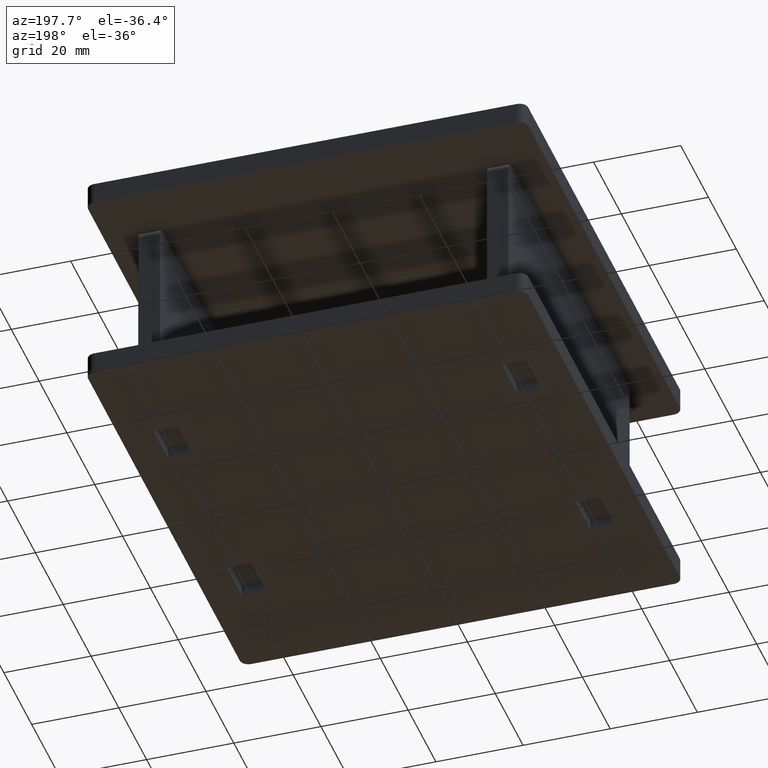
[diagram: clean part render]
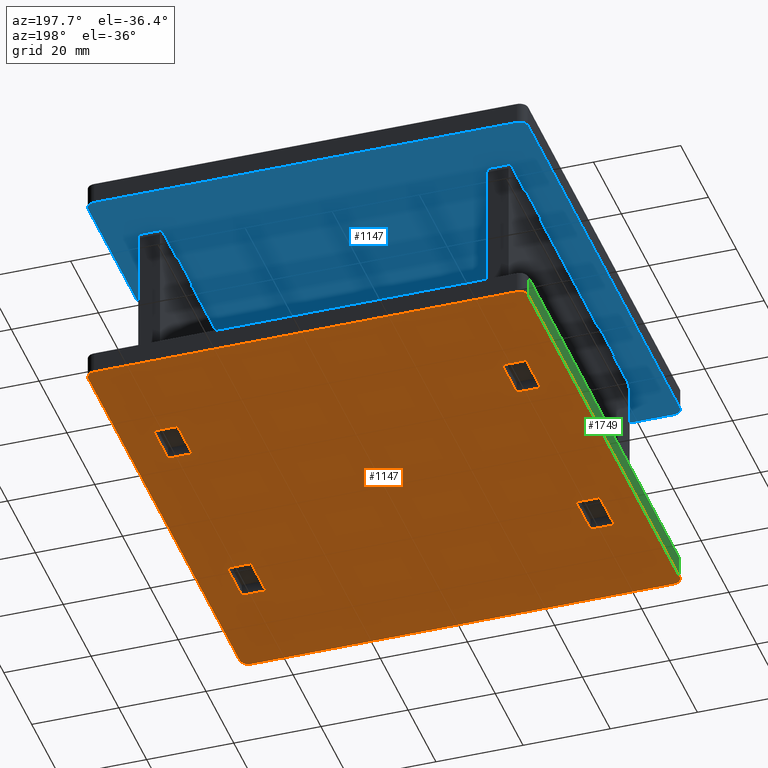
[diagram: same view with three faces highlighted in distinct colors, each labeled with its STEP entity id]
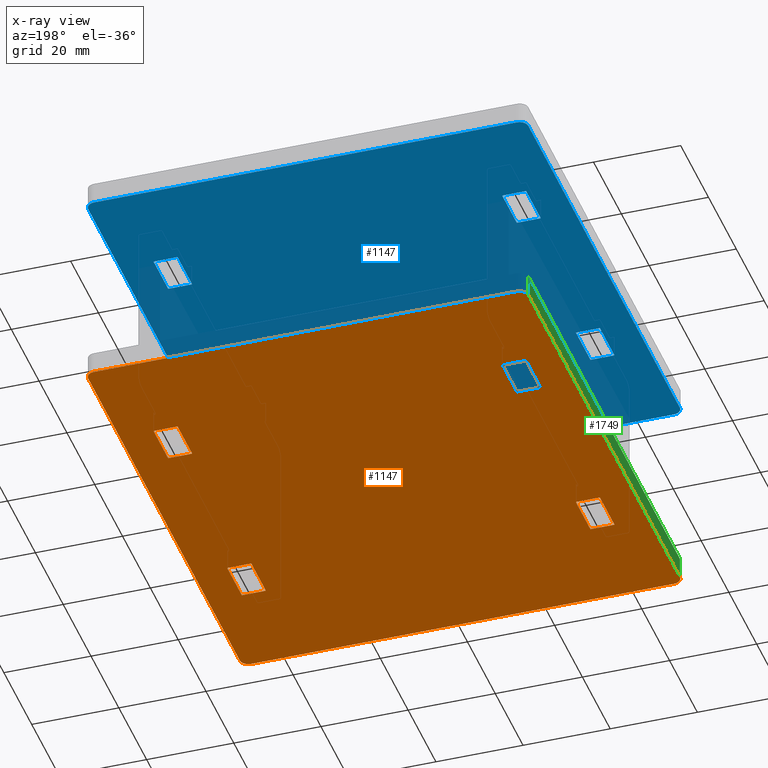
[diagram: x-ray of the same camera — body ghosted, the three highlighted faces saturated]
A machine part, auxiliary view with three faces highlighted in distinct colors.
The next image is the same camera in x-ray (body ghosted, the three faces saturated) — at least one of them is partly hidden behind the body in this view.
Their STEP definitions:

[orange] entity #1147 — the highlighted planar face has unit normal (0, 0, -1).
#9 = LINE ( 'NONE', #1069, #2030 ) ;
#27 = LINE ( 'NONE', #1655, #60 ) ;
#37 = LINE ( 'NONE', #1435, #1886 ) ;
#41 = VERTEX_POINT ( 'NONE', #973 ) ;
#49 = DIRECTION ( 'NONE',  ( 0.000000000000000000, 0.000000000000000000, -1.000000000000000000 ) ) ;
#58 = VERTEX_POINT ( 'NONE', #1675 ) ;
#60 = VECTOR ( 'NONE', #1635, 1000.000000000000000 ) ;
#72 = EDGE_CURVE ( 'NONE', #1181, #58, #117, .T. ) ;
#87 = ORIENTED_EDGE ( 'NONE', *, *, #2088, .T. ) ;
#101 = DIRECTION ( 'NONE',  ( 0.000000000000000000, 0.000000000000000000, -1.000000000000000000 ) ) ;
#104 = DIRECTION ( 'NONE',  ( 0.000000000000000000, -1.000000000000000000, 0.000000000000000000 ) ) ;
#111 = ORIENTED_EDGE ( 'NONE', *, *, #2292, .T. ) ;
#117 = LINE ( 'NONE', #1548, #2099 ) ;
#120 = VERTEX_POINT ( 'NONE', #712 ) ;
#121 = CARTESIAN_POINT ( 'NONE',  ( -42.74999999999999289, -21.24999999999999289, -5.000000000000000000 ) ) ;
#130 = CARTESIAN_POINT ( 'NONE',  ( -37.24999999999999289, 31.74999999999999289, -5.000000000000000000 ) ) ;
#134 = CARTESIAN_POINT ( 'NONE',  ( 37.25000000000000711, -21.24999999999999289, -5.000000000000000000 ) ) ;
#139 = CARTESIAN_POINT ( 'NONE',  ( -37.25000000000000711, -21.24999999999999289, -5.000000000000000000 ) ) ;
#154 = ORIENTED_EDGE ( 'NONE', *, *, #793, .F. ) ;
#206 = FACE_BOUND ( 'NONE', #2010, .T. ) ;
#214 = CARTESIAN_POINT ( 'NONE',  ( -42.74999999999999289, 31.74999999999999289, -5.000000000000000000 ) ) ;
#217 = FACE_BOUND ( 'NONE', #2075, .T. ) ;
#221 = CARTESIAN_POINT ( 'NONE',  ( -42.74999999999999289, 21.24999999999999289, -5.000000000000000000 ) ) ;
#223 = EDGE_CURVE ( 'NONE', #58, #2216, #1605, .T. ) ;
#236 = EDGE_CURVE ( 'NONE', #523, #1181, #519, .T. ) ;
#260 = CARTESIAN_POINT ( 'NONE',  ( 50.50000000000001421, -56.50000000000000000, -5.000000000000000000 ) ) ;
#305 = LINE ( 'NONE', #1394, #513 ) ;
#314 = DIRECTION ( 'NONE',  ( 0.000000000000000000, 0.000000000000000000, -1.000000000000000000 ) ) ;
#318 = CARTESIAN_POINT ( 'NONE',  ( 37.25000000000000711, -21.24999999999999289, -5.000000000000000000 ) ) ;
#328 = AXIS2_PLACEMENT_3D ( 'NONE', #571, #49, #2200 ) ;
#339 = VERTEX_POINT ( 'NONE', #214 ) ;
#371 = DIRECTION ( 'NONE',  ( 0.000000000000000000, 0.000000000000000000, -1.000000000000000000 ) ) ;
#386 = VERTEX_POINT ( 'NONE', #1278 ) ;
#393 = VERTEX_POINT ( 'NONE', #2169 ) ;
#394 = AXIS2_PLACEMENT_3D ( 'NONE', #1834, #371, #778 ) ;
#399 = FACE_BOUND ( 'NONE', #1411, .T. ) ;
#402 = VECTOR ( 'NONE', #2222, 1000.000000000000000 ) ;
#411 = PLANE ( 'NONE',  #394 ) ;
#434 = VECTOR ( 'NONE', #1898, 1000.000000000000000 ) ;
#440 = VECTOR ( 'NONE', #1121, 1000.000000000000000 ) ;
#452 = ORIENTED_EDGE ( 'NONE', *, *, #958, .T. ) ;
#478 = VERTEX_POINT ( 'NONE', #786 ) ;
#513 = VECTOR ( 'NONE', #2068, 1000.000000000000000 ) ;
#519 = LINE ( 'NONE', #1049, #1146 ) ;
#523 = VERTEX_POINT ( 'NONE', #1168 ) ;
#530 = DIRECTION ( 'NONE',  ( -1.000000000000000000, -0.000000000000000000, -0.000000000000000000 ) ) ;
#548 = CARTESIAN_POINT ( 'NONE',  ( -48.49999999999998579, -56.50000000000000000, -5.000000000000000000 ) ) ;
#550 = VECTOR ( 'NONE', #1845, 1000.000000000000000 ) ;
#561 = DIRECTION ( 'NONE',  ( -1.000000000000000000, 0.000000000000000000, 0.000000000000000000 ) ) ;
#571 = CARTESIAN_POINT ( 'NONE',  ( -48.49999999999998579, -54.50000000000000000, -5.000000000000000000 ) ) ;
#595 = CARTESIAN_POINT ( 'NONE',  ( 42.74999999999999289, 21.24999999999999289, -5.000000000000000000 ) ) ;
#601 = EDGE_CURVE ( 'NONE', #41, #1135, #2102, .T. ) ;
#602 = CARTESIAN_POINT ( 'NONE',  ( 48.50000000000001421, 54.50000000000000000, -5.000000000000000000 ) ) ;
#607 = CARTESIAN_POINT ( 'NONE',  ( 48.50000000000001421, -54.50000000000000000, -5.000000000000000000 ) ) ;
#615 = VERTEX_POINT ( 'NONE', #1016 ) ;
#650 = EDGE_CURVE ( 'NONE', #339, #964, #305, .T. ) ;
#664 = EDGE_CURVE ( 'NONE', #1584, #615, #1058, .T. ) ;
#679 = CARTESIAN_POINT ( 'NONE',  ( -48.49999999999998579, 54.50000000000000000, -5.000000000000000000 ) ) ;
#693 = ORIENTED_EDGE ( 'NONE', *, *, #601, .T. ) ;
#712 = CARTESIAN_POINT ( 'NONE',  ( -50.49999999999998579, -54.50000000000000000, -5.000000000000000000 ) ) ;
#724 = ORIENTED_EDGE ( 'NONE', *, *, #1468, .F. ) ;
#743 = LINE ( 'NONE', #1977, #2175 ) ;
#744 = EDGE_CURVE ( 'NONE', #478, #339, #9, .T. ) ;
#770 = AXIS2_PLACEMENT_3D ( 'NONE', #607, #101, #1176 ) ;
#778 = DIRECTION ( 'NONE',  ( -1.000000000000000000, 0.000000000000000000, -0.000000000000000000 ) ) ;
#786 = CARTESIAN_POINT ( 'NONE',  ( -37.24999999999999289, 31.74999999999999289, -5.000000000000000000 ) ) ;
#793 = EDGE_CURVE ( 'NONE', #41, #120, #743, .T. ) ;
#801 = VERTEX_POINT ( 'NONE', #548 ) ;
#805 = EDGE_CURVE ( 'NONE', #1818, #1401, #37, .T. ) ;
#806 = LINE ( 'NONE', #130, #402 ) ;
#822 = CARTESIAN_POINT ( 'NONE',  ( 50.50000000000001421, 54.50000000000000000, -5.000000000000000000 ) ) ;
#830 = ORIENTED_EDGE ( 'NONE', *, *, #72, .T. ) ;
#843 = ORIENTED_EDGE ( 'NONE', *, *, #1293, .F. ) ;
#845 = CARTESIAN_POINT ( 'NONE',  ( 42.74999999999999289, -31.74999999999999289, -5.000000000000000000 ) ) ;
#872 = CARTESIAN_POINT ( 'NONE',  ( 42.74999999999999289, 31.74999999999999289, -5.000000000000000000 ) ) ;
#881 = VERTEX_POINT ( 'NONE', #2184 ) ;
#900 = VERTEX_POINT ( 'NONE', #822 ) ;
#916 = CIRCLE ( 'NONE', #770, 2.000000000000001776 ) ;
#933 = ORIENTED_EDGE ( 'NONE', *, *, #2039, .F. ) ;
#953 = EDGE_CURVE ( 'NONE', #1808, #1926, #2198, .T. ) ;
#958 = EDGE_CURVE ( 'NONE', #1847, #386, #916, .T. ) ;
#964 = VERTEX_POINT ( 'NONE', #2017 ) ;
#973 = CARTESIAN_POINT ( 'NONE',  ( -50.49999999999998579, 54.50000000000000000, -5.000000000000000000 ) ) ;
#992 = LINE ( 'NONE', #1545, #1921 ) ;
#1013 = EDGE_LOOP ( 'NONE', ( #933, #1425, #154, #693, #1162, #1055, #843, #452 ) ) ;
#1016 = CARTESIAN_POINT ( 'NONE',  ( 37.25000000000000711, 21.24999999999999289, -5.000000000000000000 ) ) ;
#1049 = CARTESIAN_POINT ( 'NONE',  ( -42.74999999999999289, -21.24999999999999289, -5.000000000000000000 ) ) ;
#1055 = ORIENTED_EDGE ( 'NONE', *, *, #1311, .T. ) ;
#1058 = LINE ( 'NONE', #1555, #434 ) ;
#1069 = CARTESIAN_POINT ( 'NONE',  ( -42.74999999999999289, 31.74999999999999289, -5.000000000000000000 ) ) ;
#1077 = CARTESIAN_POINT ( 'NONE',  ( -48.49999999999998579, 56.50000000000000000, -5.000000000000000000 ) ) ;
#1109 = VECTOR ( 'NONE', #530, 1000.000000000000000 ) ;
#1117 = FACE_OUTER_BOUND ( 'NONE', #1013, .T. ) ;
#1121 = DIRECTION ( 'NONE',  ( 1.000000000000000000, 0.000000000000000000, 0.000000000000000000 ) ) ;
#1135 = VERTEX_POINT ( 'NONE', #1077 ) ;
#1146 = VECTOR ( 'NONE', #1559, 1000.000000000000000 ) ;
#1147 = ADVANCED_FACE ( 'NONE', ( #206, #399, #1117, #1825, #217 ), #411, .T. ) ;
#1162 = ORIENTED_EDGE ( 'NONE', *, *, #1516, .F. ) ;
#1168 = CARTESIAN_POINT ( 'NONE',  ( -42.74999999999999289, -21.24999999999999289, -5.000000000000000000 ) ) ;
#1176 = DIRECTION ( 'NONE',  ( -1.000000000000000000, 0.000000000000000000, 0.000000000000000000 ) ) ;
#1181 = VERTEX_POINT ( 'NONE', #1726 ) ;
#1193 = VECTOR ( 'NONE', #1850, 1000.000000000000000 ) ;
#1195 = AXIS2_PLACEMENT_3D ( 'NONE', #602, #1333, #2205 ) ;
#1267 = VECTOR ( 'NONE', #1976, 1000.000000000000000 ) ;
#1278 = CARTESIAN_POINT ( 'NONE',  ( 48.50000000000001421, -56.50000000000000000, -5.000000000000000000 ) ) ;
#1285 = LINE ( 'NONE', #221, #1267 ) ;
#1293 = EDGE_CURVE ( 'NONE', #1847, #900, #1503, .T. ) ;
#1297 = VECTOR ( 'NONE', #1428, 1000.000000000000000 ) ;
#1298 = CARTESIAN_POINT ( 'NONE',  ( -50.49999999999998579, -56.50000000000000000, -5.000000000000000000 ) ) ;
#1305 = ORIENTED_EDGE ( 'NONE', *, *, #223, .T. ) ;
#1311 = EDGE_CURVE ( 'NONE', #881, #900, #1415, .T. ) ;
#1329 = ORIENTED_EDGE ( 'NONE', *, *, #805, .F. ) ;
#1333 = DIRECTION ( 'NONE',  ( 0.000000000000000000, 0.000000000000000000, -1.000000000000000000 ) ) ;
#1346 = VECTOR ( 'NONE', #1619, 1000.000000000000000 ) ;
#1375 = DIRECTION ( 'NONE',  ( 1.000000000000000000, 0.000000000000000000, 0.000000000000000000 ) ) ;
#1378 = CARTESIAN_POINT ( 'NONE',  ( -50.49999999999998579, 56.50000000000000000, -5.000000000000000000 ) ) ;
#1389 = LINE ( 'NONE', #1378, #1109 ) ;
#1394 = CARTESIAN_POINT ( 'NONE',  ( -42.74999999999999289, 31.74999999999999289, -5.000000000000000000 ) ) ;
#1401 = VERTEX_POINT ( 'NONE', #1759 ) ;
#1409 = AXIS2_PLACEMENT_3D ( 'NONE', #679, #314, #2282 ) ;
#1411 = EDGE_LOOP ( 'NONE', ( #2189, #724, #1490, #1329 ) ) ;
#1415 = CIRCLE ( 'NONE', #1195, 2.000000000000001776 ) ;
#1425 = ORIENTED_EDGE ( 'NONE', *, *, #1643, .T. ) ;
#1427 = DIRECTION ( 'NONE',  ( -0.000000000000000000, -1.000000000000000000, -0.000000000000000000 ) ) ;
#1428 = DIRECTION ( 'NONE',  ( -6.608470384673549052E-16, 1.000000000000000000, 0.000000000000000000 ) ) ;
#1432 = EDGE_CURVE ( 'NONE', #393, #1818, #1931, .T. ) ;
#1433 = ORIENTED_EDGE ( 'NONE', *, *, #744, .T. ) ;
#1434 = CARTESIAN_POINT ( 'NONE',  ( 50.50000000000001421, -54.50000000000000000, -5.000000000000000000 ) ) ;
#1435 = CARTESIAN_POINT ( 'NONE',  ( 42.74999999999999289, -21.24999999999999289, -5.000000000000000000 ) ) ;
#1446 = CARTESIAN_POINT ( 'NONE',  ( 37.24999999999999289, 31.74999999999999289, -5.000000000000000000 ) ) ;
#1447 = DIRECTION ( 'NONE',  ( 1.000000000000000000, -0.000000000000000000, -0.000000000000000000 ) ) ;
#1468 = EDGE_CURVE ( 'NONE', #1923, #393, #1766, .T. ) ;
#1490 = ORIENTED_EDGE ( 'NONE', *, *, #1547, .F. ) ;
#1497 = CARTESIAN_POINT ( 'NONE',  ( 42.74999999999999289, 31.74999999999999289, -5.000000000000000000 ) ) ;
#1503 = LINE ( 'NONE', #260, #550 ) ;
#1505 = EDGE_LOOP ( 'NONE', ( #830, #1305, #1813, #2234 ) ) ;
#1507 = LINE ( 'NONE', #1298, #440 ) ;
#1516 = EDGE_CURVE ( 'NONE', #881, #1135, #1389, .T. ) ;
#1545 = CARTESIAN_POINT ( 'NONE',  ( 42.74999999999999289, 31.74999999999999289, -5.000000000000000000 ) ) ;
#1547 = EDGE_CURVE ( 'NONE', #1401, #1923, #27, .T. ) ;
#1548 = CARTESIAN_POINT ( 'NONE',  ( -42.74999999999999289, -31.74999999999999289, -5.000000000000000000 ) ) ;
#1555 = CARTESIAN_POINT ( 'NONE',  ( 42.74999999999999289, 21.24999999999999289, -5.000000000000000000 ) ) ;
#1559 = DIRECTION ( 'NONE',  ( 0.000000000000000000, -1.000000000000000000, 0.000000000000000000 ) ) ;
#1584 = VERTEX_POINT ( 'NONE', #595 ) ;
#1603 = LINE ( 'NONE', #1446, #1346 ) ;
#1605 = LINE ( 'NONE', #139, #1297 ) ;
#1619 = DIRECTION ( 'NONE',  ( -1.321694076934709810E-15, 1.000000000000000000, -0.000000000000000000 ) ) ;
#1635 = DIRECTION ( 'NONE',  ( 0.000000000000000000, -1.000000000000000000, 0.000000000000000000 ) ) ;
#1643 = EDGE_CURVE ( 'NONE', #801, #120, #2033, .T. ) ;
#1655 = CARTESIAN_POINT ( 'NONE',  ( 42.74999999999999289, -21.24999999999999289, -5.000000000000000000 ) ) ;
#1675 = CARTESIAN_POINT ( 'NONE',  ( -37.25000000000000000, -31.74999999999999289, -5.000000000000000000 ) ) ;
#1692 = DIRECTION ( 'NONE',  ( -1.000000000000000000, 0.000000000000000000, 0.000000000000000000 ) ) ;
#1702 = EDGE_CURVE ( 'NONE', #1926, #1584, #992, .T. ) ;
#1704 = CARTESIAN_POINT ( 'NONE',  ( -37.25000000000000711, 21.24999999999999289, -5.000000000000000000 ) ) ;
#1715 = VECTOR ( 'NONE', #1692, 1000.000000000000000 ) ;
#1726 = CARTESIAN_POINT ( 'NONE',  ( -42.74999999999999289, -31.74999999999999289, -5.000000000000000000 ) ) ;
#1746 = DIRECTION ( 'NONE',  ( -1.000000000000000000, 0.000000000000000000, 0.000000000000000000 ) ) ;
#1759 = CARTESIAN_POINT ( 'NONE',  ( 42.74999999999999289, -21.24999999999999289, -5.000000000000000000 ) ) ;
#1766 = LINE ( 'NONE', #845, #2180 ) ;
#1787 = CARTESIAN_POINT ( 'NONE',  ( 42.74999999999999289, -31.74999999999999289, -5.000000000000000000 ) ) ;
#1808 = VERTEX_POINT ( 'NONE', #2259 ) ;
#1813 = ORIENTED_EDGE ( 'NONE', *, *, #2283, .T. ) ;
#1818 = VERTEX_POINT ( 'NONE', #134 ) ;
#1825 = FACE_BOUND ( 'NONE', #1505, .T. ) ;
#1834 = CARTESIAN_POINT ( 'NONE',  ( 0.000000000000000000, 0.000000000000000000, -5.000000000000000000 ) ) ;
#1845 = DIRECTION ( 'NONE',  ( 0.000000000000000000, 1.000000000000000000, 0.000000000000000000 ) ) ;
#1847 = VERTEX_POINT ( 'NONE', #1434 ) ;
#1850 = DIRECTION ( 'NONE',  ( 1.000000000000000000, -0.000000000000000000, -0.000000000000000000 ) ) ;
#1856 = ORIENTED_EDGE ( 'NONE', *, *, #953, .F. ) ;
#1886 = VECTOR ( 'NONE', #1447, 1000.000000000000000 ) ;
#1898 = DIRECTION ( 'NONE',  ( -1.000000000000000000, 0.000000000000000000, 0.000000000000000000 ) ) ;
#1904 = EDGE_CURVE ( 'NONE', #615, #1808, #1603, .T. ) ;
#1921 = VECTOR ( 'NONE', #104, 1000.000000000000000 ) ;
#1923 = VERTEX_POINT ( 'NONE', #1787 ) ;
#1926 = VERTEX_POINT ( 'NONE', #872 ) ;
#1931 = LINE ( 'NONE', #318, #2069 ) ;
#1976 = DIRECTION ( 'NONE',  ( 1.000000000000000000, 0.000000000000000000, 0.000000000000000000 ) ) ;
#1977 = CARTESIAN_POINT ( 'NONE',  ( -50.49999999999998579, -56.50000000000000000, -5.000000000000000000 ) ) ;
#2010 = EDGE_LOOP ( 'NONE', ( #2112, #2202, #2165, #1856 ) ) ;
#2017 = CARTESIAN_POINT ( 'NONE',  ( -42.74999999999999289, 21.24999999999999289, -5.000000000000000000 ) ) ;
#2030 = VECTOR ( 'NONE', #561, 1000.000000000000000 ) ;
#2033 = CIRCLE ( 'NONE', #328, 2.000000000000001776 ) ;
#2039 = EDGE_CURVE ( 'NONE', #801, #386, #1507, .T. ) ;
#2044 = CARTESIAN_POINT ( 'NONE',  ( -37.25000000000000711, -21.24999999999999289, -5.000000000000000000 ) ) ;
#2068 = DIRECTION ( 'NONE',  ( 0.000000000000000000, -1.000000000000000000, 0.000000000000000000 ) ) ;
#2069 = VECTOR ( 'NONE', #2285, 1000.000000000000000 ) ;
#2075 = EDGE_LOOP ( 'NONE', ( #87, #111, #1433, #2187 ) ) ;
#2088 = EDGE_CURVE ( 'NONE', #964, #2268, #1285, .T. ) ;
#2099 = VECTOR ( 'NONE', #1375, 1000.000000000000000 ) ;
#2102 = CIRCLE ( 'NONE', #1409, 2.000000000000001776 ) ;
#2112 = ORIENTED_EDGE ( 'NONE', *, *, #1904, .F. ) ;
#2165 = ORIENTED_EDGE ( 'NONE', *, *, #1702, .F. ) ;
#2169 = CARTESIAN_POINT ( 'NONE',  ( 37.25000000000000000, -31.74999999999999289, -5.000000000000000000 ) ) ;
#2175 = VECTOR ( 'NONE', #1427, 1000.000000000000000 ) ;
#2180 = VECTOR ( 'NONE', #1746, 1000.000000000000000 ) ;
#2184 = CARTESIAN_POINT ( 'NONE',  ( 48.50000000000001421, 56.50000000000000000, -5.000000000000000000 ) ) ;
#2187 = ORIENTED_EDGE ( 'NONE', *, *, #650, .T. ) ;
#2189 = ORIENTED_EDGE ( 'NONE', *, *, #1432, .F. ) ;
#2198 = LINE ( 'NONE', #1497, #1193 ) ;
#2200 = DIRECTION ( 'NONE',  ( -1.000000000000000000, 0.000000000000000000, 0.000000000000000000 ) ) ;
#2202 = ORIENTED_EDGE ( 'NONE', *, *, #664, .F. ) ;
#2205 = DIRECTION ( 'NONE',  ( -1.000000000000000000, 0.000000000000000000, 0.000000000000000000 ) ) ;
#2216 = VERTEX_POINT ( 'NONE', #2044 ) ;
#2222 = DIRECTION ( 'NONE',  ( 1.321694076934709810E-15, 1.000000000000000000, 0.000000000000000000 ) ) ;
#2234 = ORIENTED_EDGE ( 'NONE', *, *, #236, .T. ) ;
#2238 = LINE ( 'NONE', #121, #1715 ) ;
#2259 = CARTESIAN_POINT ( 'NONE',  ( 37.24999999999999289, 31.74999999999999289, -5.000000000000000000 ) ) ;
#2268 = VERTEX_POINT ( 'NONE', #1704 ) ;
#2282 = DIRECTION ( 'NONE',  ( -1.000000000000000000, 0.000000000000000000, 0.000000000000000000 ) ) ;
#2283 = EDGE_CURVE ( 'NONE', #2216, #523, #2238, .T. ) ;
#2285 = DIRECTION ( 'NONE',  ( 6.608470384673549052E-16, 1.000000000000000000, -0.000000000000000000 ) ) ;
#2292 = EDGE_CURVE ( 'NONE', #2268, #478, #806, .T. ) ;

[blue] entity #1147 — the highlighted planar face has unit normal (0, 0, -1).
#9 = LINE ( 'NONE', #1069, #2030 ) ;
#27 = LINE ( 'NONE', #1655, #60 ) ;
#37 = LINE ( 'NONE', #1435, #1886 ) ;
#41 = VERTEX_POINT ( 'NONE', #973 ) ;
#49 = DIRECTION ( 'NONE',  ( 0.000000000000000000, 0.000000000000000000, -1.000000000000000000 ) ) ;
#58 = VERTEX_POINT ( 'NONE', #1675 ) ;
#60 = VECTOR ( 'NONE', #1635, 1000.000000000000000 ) ;
#72 = EDGE_CURVE ( 'NONE', #1181, #58, #117, .T. ) ;
#87 = ORIENTED_EDGE ( 'NONE', *, *, #2088, .T. ) ;
#101 = DIRECTION ( 'NONE',  ( 0.000000000000000000, 0.000000000000000000, -1.000000000000000000 ) ) ;
#104 = DIRECTION ( 'NONE',  ( 0.000000000000000000, -1.000000000000000000, 0.000000000000000000 ) ) ;
#111 = ORIENTED_EDGE ( 'NONE', *, *, #2292, .T. ) ;
#117 = LINE ( 'NONE', #1548, #2099 ) ;
#120 = VERTEX_POINT ( 'NONE', #712 ) ;
#121 = CARTESIAN_POINT ( 'NONE',  ( -42.74999999999999289, -21.24999999999999289, -5.000000000000000000 ) ) ;
#130 = CARTESIAN_POINT ( 'NONE',  ( -37.24999999999999289, 31.74999999999999289, -5.000000000000000000 ) ) ;
#134 = CARTESIAN_POINT ( 'NONE',  ( 37.25000000000000711, -21.24999999999999289, -5.000000000000000000 ) ) ;
#139 = CARTESIAN_POINT ( 'NONE',  ( -37.25000000000000711, -21.24999999999999289, -5.000000000000000000 ) ) ;
#154 = ORIENTED_EDGE ( 'NONE', *, *, #793, .F. ) ;
#206 = FACE_BOUND ( 'NONE', #2010, .T. ) ;
#214 = CARTESIAN_POINT ( 'NONE',  ( -42.74999999999999289, 31.74999999999999289, -5.000000000000000000 ) ) ;
#217 = FACE_BOUND ( 'NONE', #2075, .T. ) ;
#221 = CARTESIAN_POINT ( 'NONE',  ( -42.74999999999999289, 21.24999999999999289, -5.000000000000000000 ) ) ;
#223 = EDGE_CURVE ( 'NONE', #58, #2216, #1605, .T. ) ;
#236 = EDGE_CURVE ( 'NONE', #523, #1181, #519, .T. ) ;
#260 = CARTESIAN_POINT ( 'NONE',  ( 50.50000000000001421, -56.50000000000000000, -5.000000000000000000 ) ) ;
#305 = LINE ( 'NONE', #1394, #513 ) ;
#314 = DIRECTION ( 'NONE',  ( 0.000000000000000000, 0.000000000000000000, -1.000000000000000000 ) ) ;
#318 = CARTESIAN_POINT ( 'NONE',  ( 37.25000000000000711, -21.24999999999999289, -5.000000000000000000 ) ) ;
#328 = AXIS2_PLACEMENT_3D ( 'NONE', #571, #49, #2200 ) ;
#339 = VERTEX_POINT ( 'NONE', #214 ) ;
#371 = DIRECTION ( 'NONE',  ( 0.000000000000000000, 0.000000000000000000, -1.000000000000000000 ) ) ;
#386 = VERTEX_POINT ( 'NONE', #1278 ) ;
#393 = VERTEX_POINT ( 'NONE', #2169 ) ;
#394 = AXIS2_PLACEMENT_3D ( 'NONE', #1834, #371, #778 ) ;
#399 = FACE_BOUND ( 'NONE', #1411, .T. ) ;
#402 = VECTOR ( 'NONE', #2222, 1000.000000000000000 ) ;
#411 = PLANE ( 'NONE',  #394 ) ;
#434 = VECTOR ( 'NONE', #1898, 1000.000000000000000 ) ;
#440 = VECTOR ( 'NONE', #1121, 1000.000000000000000 ) ;
#452 = ORIENTED_EDGE ( 'NONE', *, *, #958, .T. ) ;
#478 = VERTEX_POINT ( 'NONE', #786 ) ;
#513 = VECTOR ( 'NONE', #2068, 1000.000000000000000 ) ;
#519 = LINE ( 'NONE', #1049, #1146 ) ;
#523 = VERTEX_POINT ( 'NONE', #1168 ) ;
#530 = DIRECTION ( 'NONE',  ( -1.000000000000000000, -0.000000000000000000, -0.000000000000000000 ) ) ;
#548 = CARTESIAN_POINT ( 'NONE',  ( -48.49999999999998579, -56.50000000000000000, -5.000000000000000000 ) ) ;
#550 = VECTOR ( 'NONE', #1845, 1000.000000000000000 ) ;
#561 = DIRECTION ( 'NONE',  ( -1.000000000000000000, 0.000000000000000000, 0.000000000000000000 ) ) ;
#571 = CARTESIAN_POINT ( 'NONE',  ( -48.49999999999998579, -54.50000000000000000, -5.000000000000000000 ) ) ;
#595 = CARTESIAN_POINT ( 'NONE',  ( 42.74999999999999289, 21.24999999999999289, -5.000000000000000000 ) ) ;
#601 = EDGE_CURVE ( 'NONE', #41, #1135, #2102, .T. ) ;
#602 = CARTESIAN_POINT ( 'NONE',  ( 48.50000000000001421, 54.50000000000000000, -5.000000000000000000 ) ) ;
#607 = CARTESIAN_POINT ( 'NONE',  ( 48.50000000000001421, -54.50000000000000000, -5.000000000000000000 ) ) ;
#615 = VERTEX_POINT ( 'NONE', #1016 ) ;
#650 = EDGE_CURVE ( 'NONE', #339, #964, #305, .T. ) ;
#664 = EDGE_CURVE ( 'NONE', #1584, #615, #1058, .T. ) ;
#679 = CARTESIAN_POINT ( 'NONE',  ( -48.49999999999998579, 54.50000000000000000, -5.000000000000000000 ) ) ;
#693 = ORIENTED_EDGE ( 'NONE', *, *, #601, .T. ) ;
#712 = CARTESIAN_POINT ( 'NONE',  ( -50.49999999999998579, -54.50000000000000000, -5.000000000000000000 ) ) ;
#724 = ORIENTED_EDGE ( 'NONE', *, *, #1468, .F. ) ;
#743 = LINE ( 'NONE', #1977, #2175 ) ;
#744 = EDGE_CURVE ( 'NONE', #478, #339, #9, .T. ) ;
#770 = AXIS2_PLACEMENT_3D ( 'NONE', #607, #101, #1176 ) ;
#778 = DIRECTION ( 'NONE',  ( -1.000000000000000000, 0.000000000000000000, -0.000000000000000000 ) ) ;
#786 = CARTESIAN_POINT ( 'NONE',  ( -37.24999999999999289, 31.74999999999999289, -5.000000000000000000 ) ) ;
#793 = EDGE_CURVE ( 'NONE', #41, #120, #743, .T. ) ;
#801 = VERTEX_POINT ( 'NONE', #548 ) ;
#805 = EDGE_CURVE ( 'NONE', #1818, #1401, #37, .T. ) ;
#806 = LINE ( 'NONE', #130, #402 ) ;
#822 = CARTESIAN_POINT ( 'NONE',  ( 50.50000000000001421, 54.50000000000000000, -5.000000000000000000 ) ) ;
#830 = ORIENTED_EDGE ( 'NONE', *, *, #72, .T. ) ;
#843 = ORIENTED_EDGE ( 'NONE', *, *, #1293, .F. ) ;
#845 = CARTESIAN_POINT ( 'NONE',  ( 42.74999999999999289, -31.74999999999999289, -5.000000000000000000 ) ) ;
#872 = CARTESIAN_POINT ( 'NONE',  ( 42.74999999999999289, 31.74999999999999289, -5.000000000000000000 ) ) ;
#881 = VERTEX_POINT ( 'NONE', #2184 ) ;
#900 = VERTEX_POINT ( 'NONE', #822 ) ;
#916 = CIRCLE ( 'NONE', #770, 2.000000000000001776 ) ;
#933 = ORIENTED_EDGE ( 'NONE', *, *, #2039, .F. ) ;
#953 = EDGE_CURVE ( 'NONE', #1808, #1926, #2198, .T. ) ;
#958 = EDGE_CURVE ( 'NONE', #1847, #386, #916, .T. ) ;
#964 = VERTEX_POINT ( 'NONE', #2017 ) ;
#973 = CARTESIAN_POINT ( 'NONE',  ( -50.49999999999998579, 54.50000000000000000, -5.000000000000000000 ) ) ;
#992 = LINE ( 'NONE', #1545, #1921 ) ;
#1013 = EDGE_LOOP ( 'NONE', ( #933, #1425, #154, #693, #1162, #1055, #843, #452 ) ) ;
#1016 = CARTESIAN_POINT ( 'NONE',  ( 37.25000000000000711, 21.24999999999999289, -5.000000000000000000 ) ) ;
#1049 = CARTESIAN_POINT ( 'NONE',  ( -42.74999999999999289, -21.24999999999999289, -5.000000000000000000 ) ) ;
#1055 = ORIENTED_EDGE ( 'NONE', *, *, #1311, .T. ) ;
#1058 = LINE ( 'NONE', #1555, #434 ) ;
#1069 = CARTESIAN_POINT ( 'NONE',  ( -42.74999999999999289, 31.74999999999999289, -5.000000000000000000 ) ) ;
#1077 = CARTESIAN_POINT ( 'NONE',  ( -48.49999999999998579, 56.50000000000000000, -5.000000000000000000 ) ) ;
#1109 = VECTOR ( 'NONE', #530, 1000.000000000000000 ) ;
#1117 = FACE_OUTER_BOUND ( 'NONE', #1013, .T. ) ;
#1121 = DIRECTION ( 'NONE',  ( 1.000000000000000000, 0.000000000000000000, 0.000000000000000000 ) ) ;
#1135 = VERTEX_POINT ( 'NONE', #1077 ) ;
#1146 = VECTOR ( 'NONE', #1559, 1000.000000000000000 ) ;
#1147 = ADVANCED_FACE ( 'NONE', ( #206, #399, #1117, #1825, #217 ), #411, .T. ) ;
#1162 = ORIENTED_EDGE ( 'NONE', *, *, #1516, .F. ) ;
#1168 = CARTESIAN_POINT ( 'NONE',  ( -42.74999999999999289, -21.24999999999999289, -5.000000000000000000 ) ) ;
#1176 = DIRECTION ( 'NONE',  ( -1.000000000000000000, 0.000000000000000000, 0.000000000000000000 ) ) ;
#1181 = VERTEX_POINT ( 'NONE', #1726 ) ;
#1193 = VECTOR ( 'NONE', #1850, 1000.000000000000000 ) ;
#1195 = AXIS2_PLACEMENT_3D ( 'NONE', #602, #1333, #2205 ) ;
#1267 = VECTOR ( 'NONE', #1976, 1000.000000000000000 ) ;
#1278 = CARTESIAN_POINT ( 'NONE',  ( 48.50000000000001421, -56.50000000000000000, -5.000000000000000000 ) ) ;
#1285 = LINE ( 'NONE', #221, #1267 ) ;
#1293 = EDGE_CURVE ( 'NONE', #1847, #900, #1503, .T. ) ;
#1297 = VECTOR ( 'NONE', #1428, 1000.000000000000000 ) ;
#1298 = CARTESIAN_POINT ( 'NONE',  ( -50.49999999999998579, -56.50000000000000000, -5.000000000000000000 ) ) ;
#1305 = ORIENTED_EDGE ( 'NONE', *, *, #223, .T. ) ;
#1311 = EDGE_CURVE ( 'NONE', #881, #900, #1415, .T. ) ;
#1329 = ORIENTED_EDGE ( 'NONE', *, *, #805, .F. ) ;
#1333 = DIRECTION ( 'NONE',  ( 0.000000000000000000, 0.000000000000000000, -1.000000000000000000 ) ) ;
#1346 = VECTOR ( 'NONE', #1619, 1000.000000000000000 ) ;
#1375 = DIRECTION ( 'NONE',  ( 1.000000000000000000, 0.000000000000000000, 0.000000000000000000 ) ) ;
#1378 = CARTESIAN_POINT ( 'NONE',  ( -50.49999999999998579, 56.50000000000000000, -5.000000000000000000 ) ) ;
#1389 = LINE ( 'NONE', #1378, #1109 ) ;
#1394 = CARTESIAN_POINT ( 'NONE',  ( -42.74999999999999289, 31.74999999999999289, -5.000000000000000000 ) ) ;
#1401 = VERTEX_POINT ( 'NONE', #1759 ) ;
#1409 = AXIS2_PLACEMENT_3D ( 'NONE', #679, #314, #2282 ) ;
#1411 = EDGE_LOOP ( 'NONE', ( #2189, #724, #1490, #1329 ) ) ;
#1415 = CIRCLE ( 'NONE', #1195, 2.000000000000001776 ) ;
#1425 = ORIENTED_EDGE ( 'NONE', *, *, #1643, .T. ) ;
#1427 = DIRECTION ( 'NONE',  ( -0.000000000000000000, -1.000000000000000000, -0.000000000000000000 ) ) ;
#1428 = DIRECTION ( 'NONE',  ( -6.608470384673549052E-16, 1.000000000000000000, 0.000000000000000000 ) ) ;
#1432 = EDGE_CURVE ( 'NONE', #393, #1818, #1931, .T. ) ;
#1433 = ORIENTED_EDGE ( 'NONE', *, *, #744, .T. ) ;
#1434 = CARTESIAN_POINT ( 'NONE',  ( 50.50000000000001421, -54.50000000000000000, -5.000000000000000000 ) ) ;
#1435 = CARTESIAN_POINT ( 'NONE',  ( 42.74999999999999289, -21.24999999999999289, -5.000000000000000000 ) ) ;
#1446 = CARTESIAN_POINT ( 'NONE',  ( 37.24999999999999289, 31.74999999999999289, -5.000000000000000000 ) ) ;
#1447 = DIRECTION ( 'NONE',  ( 1.000000000000000000, -0.000000000000000000, -0.000000000000000000 ) ) ;
#1468 = EDGE_CURVE ( 'NONE', #1923, #393, #1766, .T. ) ;
#1490 = ORIENTED_EDGE ( 'NONE', *, *, #1547, .F. ) ;
#1497 = CARTESIAN_POINT ( 'NONE',  ( 42.74999999999999289, 31.74999999999999289, -5.000000000000000000 ) ) ;
#1503 = LINE ( 'NONE', #260, #550 ) ;
#1505 = EDGE_LOOP ( 'NONE', ( #830, #1305, #1813, #2234 ) ) ;
#1507 = LINE ( 'NONE', #1298, #440 ) ;
#1516 = EDGE_CURVE ( 'NONE', #881, #1135, #1389, .T. ) ;
#1545 = CARTESIAN_POINT ( 'NONE',  ( 42.74999999999999289, 31.74999999999999289, -5.000000000000000000 ) ) ;
#1547 = EDGE_CURVE ( 'NONE', #1401, #1923, #27, .T. ) ;
#1548 = CARTESIAN_POINT ( 'NONE',  ( -42.74999999999999289, -31.74999999999999289, -5.000000000000000000 ) ) ;
#1555 = CARTESIAN_POINT ( 'NONE',  ( 42.74999999999999289, 21.24999999999999289, -5.000000000000000000 ) ) ;
#1559 = DIRECTION ( 'NONE',  ( 0.000000000000000000, -1.000000000000000000, 0.000000000000000000 ) ) ;
#1584 = VERTEX_POINT ( 'NONE', #595 ) ;
#1603 = LINE ( 'NONE', #1446, #1346 ) ;
#1605 = LINE ( 'NONE', #139, #1297 ) ;
#1619 = DIRECTION ( 'NONE',  ( -1.321694076934709810E-15, 1.000000000000000000, -0.000000000000000000 ) ) ;
#1635 = DIRECTION ( 'NONE',  ( 0.000000000000000000, -1.000000000000000000, 0.000000000000000000 ) ) ;
#1643 = EDGE_CURVE ( 'NONE', #801, #120, #2033, .T. ) ;
#1655 = CARTESIAN_POINT ( 'NONE',  ( 42.74999999999999289, -21.24999999999999289, -5.000000000000000000 ) ) ;
#1675 = CARTESIAN_POINT ( 'NONE',  ( -37.25000000000000000, -31.74999999999999289, -5.000000000000000000 ) ) ;
#1692 = DIRECTION ( 'NONE',  ( -1.000000000000000000, 0.000000000000000000, 0.000000000000000000 ) ) ;
#1702 = EDGE_CURVE ( 'NONE', #1926, #1584, #992, .T. ) ;
#1704 = CARTESIAN_POINT ( 'NONE',  ( -37.25000000000000711, 21.24999999999999289, -5.000000000000000000 ) ) ;
#1715 = VECTOR ( 'NONE', #1692, 1000.000000000000000 ) ;
#1726 = CARTESIAN_POINT ( 'NONE',  ( -42.74999999999999289, -31.74999999999999289, -5.000000000000000000 ) ) ;
#1746 = DIRECTION ( 'NONE',  ( -1.000000000000000000, 0.000000000000000000, 0.000000000000000000 ) ) ;
#1759 = CARTESIAN_POINT ( 'NONE',  ( 42.74999999999999289, -21.24999999999999289, -5.000000000000000000 ) ) ;
#1766 = LINE ( 'NONE', #845, #2180 ) ;
#1787 = CARTESIAN_POINT ( 'NONE',  ( 42.74999999999999289, -31.74999999999999289, -5.000000000000000000 ) ) ;
#1808 = VERTEX_POINT ( 'NONE', #2259 ) ;
#1813 = ORIENTED_EDGE ( 'NONE', *, *, #2283, .T. ) ;
#1818 = VERTEX_POINT ( 'NONE', #134 ) ;
#1825 = FACE_BOUND ( 'NONE', #1505, .T. ) ;
#1834 = CARTESIAN_POINT ( 'NONE',  ( 0.000000000000000000, 0.000000000000000000, -5.000000000000000000 ) ) ;
#1845 = DIRECTION ( 'NONE',  ( 0.000000000000000000, 1.000000000000000000, 0.000000000000000000 ) ) ;
#1847 = VERTEX_POINT ( 'NONE', #1434 ) ;
#1850 = DIRECTION ( 'NONE',  ( 1.000000000000000000, -0.000000000000000000, -0.000000000000000000 ) ) ;
#1856 = ORIENTED_EDGE ( 'NONE', *, *, #953, .F. ) ;
#1886 = VECTOR ( 'NONE', #1447, 1000.000000000000000 ) ;
#1898 = DIRECTION ( 'NONE',  ( -1.000000000000000000, 0.000000000000000000, 0.000000000000000000 ) ) ;
#1904 = EDGE_CURVE ( 'NONE', #615, #1808, #1603, .T. ) ;
#1921 = VECTOR ( 'NONE', #104, 1000.000000000000000 ) ;
#1923 = VERTEX_POINT ( 'NONE', #1787 ) ;
#1926 = VERTEX_POINT ( 'NONE', #872 ) ;
#1931 = LINE ( 'NONE', #318, #2069 ) ;
#1976 = DIRECTION ( 'NONE',  ( 1.000000000000000000, 0.000000000000000000, 0.000000000000000000 ) ) ;
#1977 = CARTESIAN_POINT ( 'NONE',  ( -50.49999999999998579, -56.50000000000000000, -5.000000000000000000 ) ) ;
#2010 = EDGE_LOOP ( 'NONE', ( #2112, #2202, #2165, #1856 ) ) ;
#2017 = CARTESIAN_POINT ( 'NONE',  ( -42.74999999999999289, 21.24999999999999289, -5.000000000000000000 ) ) ;
#2030 = VECTOR ( 'NONE', #561, 1000.000000000000000 ) ;
#2033 = CIRCLE ( 'NONE', #328, 2.000000000000001776 ) ;
#2039 = EDGE_CURVE ( 'NONE', #801, #386, #1507, .T. ) ;
#2044 = CARTESIAN_POINT ( 'NONE',  ( -37.25000000000000711, -21.24999999999999289, -5.000000000000000000 ) ) ;
#2068 = DIRECTION ( 'NONE',  ( 0.000000000000000000, -1.000000000000000000, 0.000000000000000000 ) ) ;
#2069 = VECTOR ( 'NONE', #2285, 1000.000000000000000 ) ;
#2075 = EDGE_LOOP ( 'NONE', ( #87, #111, #1433, #2187 ) ) ;
#2088 = EDGE_CURVE ( 'NONE', #964, #2268, #1285, .T. ) ;
#2099 = VECTOR ( 'NONE', #1375, 1000.000000000000000 ) ;
#2102 = CIRCLE ( 'NONE', #1409, 2.000000000000001776 ) ;
#2112 = ORIENTED_EDGE ( 'NONE', *, *, #1904, .F. ) ;
#2165 = ORIENTED_EDGE ( 'NONE', *, *, #1702, .F. ) ;
#2169 = CARTESIAN_POINT ( 'NONE',  ( 37.25000000000000000, -31.74999999999999289, -5.000000000000000000 ) ) ;
#2175 = VECTOR ( 'NONE', #1427, 1000.000000000000000 ) ;
#2180 = VECTOR ( 'NONE', #1746, 1000.000000000000000 ) ;
#2184 = CARTESIAN_POINT ( 'NONE',  ( 48.50000000000001421, 56.50000000000000000, -5.000000000000000000 ) ) ;
#2187 = ORIENTED_EDGE ( 'NONE', *, *, #650, .T. ) ;
#2189 = ORIENTED_EDGE ( 'NONE', *, *, #1432, .F. ) ;
#2198 = LINE ( 'NONE', #1497, #1193 ) ;
#2200 = DIRECTION ( 'NONE',  ( -1.000000000000000000, 0.000000000000000000, 0.000000000000000000 ) ) ;
#2202 = ORIENTED_EDGE ( 'NONE', *, *, #664, .F. ) ;
#2205 = DIRECTION ( 'NONE',  ( -1.000000000000000000, 0.000000000000000000, 0.000000000000000000 ) ) ;
#2216 = VERTEX_POINT ( 'NONE', #2044 ) ;
#2222 = DIRECTION ( 'NONE',  ( 1.321694076934709810E-15, 1.000000000000000000, 0.000000000000000000 ) ) ;
#2234 = ORIENTED_EDGE ( 'NONE', *, *, #236, .T. ) ;
#2238 = LINE ( 'NONE', #121, #1715 ) ;
#2259 = CARTESIAN_POINT ( 'NONE',  ( 37.24999999999999289, 31.74999999999999289, -5.000000000000000000 ) ) ;
#2268 = VERTEX_POINT ( 'NONE', #1704 ) ;
#2282 = DIRECTION ( 'NONE',  ( -1.000000000000000000, 0.000000000000000000, 0.000000000000000000 ) ) ;
#2283 = EDGE_CURVE ( 'NONE', #2216, #523, #2238, .T. ) ;
#2285 = DIRECTION ( 'NONE',  ( 6.608470384673549052E-16, 1.000000000000000000, -0.000000000000000000 ) ) ;
#2292 = EDGE_CURVE ( 'NONE', #2268, #478, #806, .T. ) ;

[green] entity #1749 — the highlighted planar face has unit normal (-1, 0, 0).
#41 = VERTEX_POINT ( 'NONE', #973 ) ;
#88 = DIRECTION ( 'NONE',  ( -0.000000000000000000, -0.000000000000000000, -1.000000000000000000 ) ) ;
#120 = VERTEX_POINT ( 'NONE', #712 ) ;
#200 = ORIENTED_EDGE ( 'NONE', *, *, #717, .T. ) ;
#222 = DIRECTION ( 'NONE',  ( -0.000000000000000000, -1.000000000000000000, -0.000000000000000000 ) ) ;
#226 = ORIENTED_EDGE ( 'NONE', *, *, #793, .T. ) ;
#278 = CARTESIAN_POINT ( 'NONE',  ( -50.49999999999998579, 54.50000000000000000, -5.000000000000000000 ) ) ;
#313 = DIRECTION ( 'NONE',  ( 0.000000000000000000, 0.000000000000000000, 1.000000000000000000 ) ) ;
#463 = EDGE_CURVE ( 'NONE', #579, #41, #1672, .T. ) ;
#470 = CARTESIAN_POINT ( 'NONE',  ( -50.49999999999998579, -56.50000000000000000, -5.000000000000000000 ) ) ;
#579 = VERTEX_POINT ( 'NONE', #2273 ) ;
#645 = PLANE ( 'NONE',  #2231 ) ;
#711 = CARTESIAN_POINT ( 'NONE',  ( -50.49999999999998579, -56.50000000000000000, 0.000000000000000000 ) ) ;
#712 = CARTESIAN_POINT ( 'NONE',  ( -50.49999999999998579, -54.50000000000000000, -5.000000000000000000 ) ) ;
#717 = EDGE_CURVE ( 'NONE', #120, #1659, #2134, .T. ) ;
#721 = CARTESIAN_POINT ( 'NONE',  ( -50.49999999999998579, -54.50000000000000000, -5.000000000000000000 ) ) ;
#743 = LINE ( 'NONE', #1977, #2175 ) ;
#755 = CARTESIAN_POINT ( 'NONE',  ( -50.49999999999998579, -54.50000000000000000, 0.000000000000000000 ) ) ;
#776 = EDGE_CURVE ( 'NONE', #579, #1659, #1276, .T. ) ;
#793 = EDGE_CURVE ( 'NONE', #41, #120, #743, .T. ) ;
#934 = ORIENTED_EDGE ( 'NONE', *, *, #463, .T. ) ;
#937 = ORIENTED_EDGE ( 'NONE', *, *, #776, .F. ) ;
#973 = CARTESIAN_POINT ( 'NONE',  ( -50.49999999999998579, 54.50000000000000000, -5.000000000000000000 ) ) ;
#996 = VECTOR ( 'NONE', #222, 1000.000000000000000 ) ;
#1102 = VECTOR ( 'NONE', #88, 1000.000000000000000 ) ;
#1276 = LINE ( 'NONE', #711, #996 ) ;
#1364 = DIRECTION ( 'NONE',  ( -1.000000000000000000, 0.000000000000000000, 0.000000000000000000 ) ) ;
#1386 = FACE_OUTER_BOUND ( 'NONE', #2196, .T. ) ;
#1427 = DIRECTION ( 'NONE',  ( -0.000000000000000000, -1.000000000000000000, -0.000000000000000000 ) ) ;
#1659 = VERTEX_POINT ( 'NONE', #755 ) ;
#1672 = LINE ( 'NONE', #278, #1102 ) ;
#1708 = VECTOR ( 'NONE', #2147, 1000.000000000000000 ) ;
#1749 = ADVANCED_FACE ( 'NONE', ( #1386 ), #645, .T. ) ;
#1977 = CARTESIAN_POINT ( 'NONE',  ( -50.49999999999998579, -56.50000000000000000, -5.000000000000000000 ) ) ;
#2134 = LINE ( 'NONE', #721, #1708 ) ;
#2147 = DIRECTION ( 'NONE',  ( 0.000000000000000000, 0.000000000000000000, 1.000000000000000000 ) ) ;
#2175 = VECTOR ( 'NONE', #1427, 1000.000000000000000 ) ;
#2196 = EDGE_LOOP ( 'NONE', ( #226, #200, #937, #934 ) ) ;
#2231 = AXIS2_PLACEMENT_3D ( 'NONE', #470, #1364, #313 ) ;
#2273 = CARTESIAN_POINT ( 'NONE',  ( -50.49999999999998579, 54.50000000000000000, 0.000000000000000000 ) ) ;